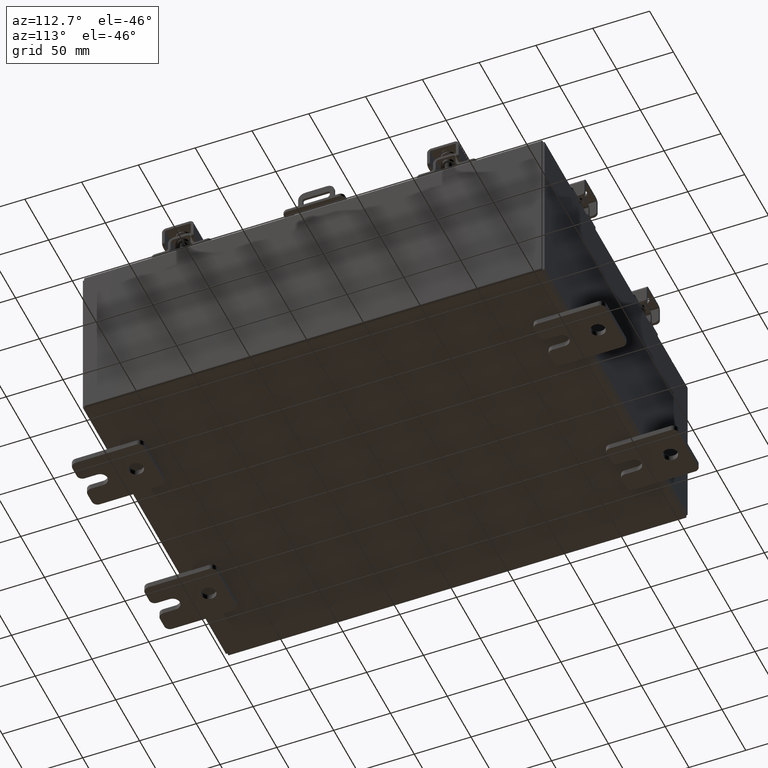
[diagram: clean part render]
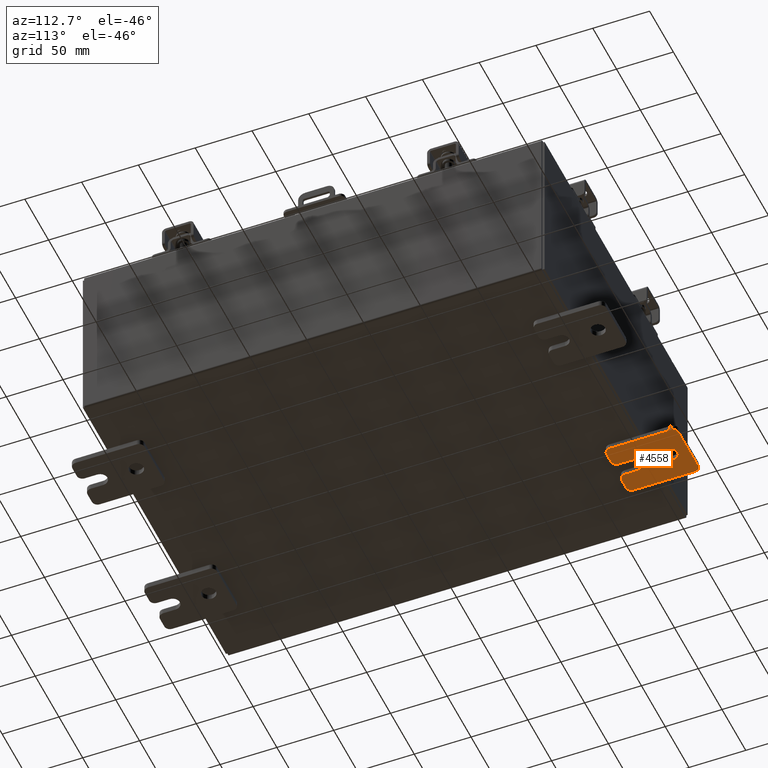
[diagram: same view with one face highlighted and labeled with its STEP entity id]
A machine part, auxiliary view. The second image highlights one B-rep face of the part: STEP entity #4558.
In plain terms, the highlighted planar face has unit normal (0, 0, 1).
Its self-contained STEP definition (entity closure, byte-faithful):
#18 = LINE ( 'NONE', #3901, #20382 ) ;
#193 = DIRECTION ( 'NONE',  ( 0.0000000000000000000, 0.0000000000000000000, -1.000000000000000000 ) ) ;
#208 = DIRECTION ( 'NONE',  ( -1.000000000000000000, -0.0000000000000000000, 0.0000000000000000000 ) ) ;
#232 = CARTESIAN_POINT ( 'NONE',  ( -0.1879999999999997800, 1.059999999999996300, 0.8099999999999938400 ) ) ;
#334 = CARTESIAN_POINT ( 'NONE',  ( -0.1879999999999997800, -1.060000000000001600, 0.8099999999999978300 ) ) ;
#712 = ORIENTED_EDGE ( 'NONE', *, *, #10121, .T. ) ;
#1002 = DIRECTION ( 'NONE',  ( 0.0000000000000000000, -1.639108796198553600E-015, -1.000000000000000000 ) ) ;
#1017 = DIRECTION ( 'NONE',  ( 0.0000000000000000000, 0.0000000000000000000, -1.000000000000000000 ) ) ;
#1085 = DIRECTION ( 'NONE',  ( 1.000000000000000000, -0.0000000000000000000, -5.163192708025532000E-017 ) ) ;
#1157 = CARTESIAN_POINT ( 'NONE',  ( -0.1880000000000010000, 0.6249999999999992200, -7.703811342100550500E-020 ) ) ;
#1329 = CARTESIAN_POINT ( 'NONE',  ( -0.1880000000000001900, -0.6249999999999992200, -0.2499999999999998600 ) ) ;
#1382 = VERTEX_POINT ( 'NONE', #18584 ) ;
#1408 = VECTOR ( 'NONE', #11051, 39.37007874015748100 ) ;
#1456 = ORIENTED_EDGE ( 'NONE', *, *, #18221, .T. ) ;
#1627 = VECTOR ( 'NONE', #15226, 39.37007874015748100 ) ;
#1809 = VECTOR ( 'NONE', #19936, 39.37007874015748100 ) ;
#1850 = VERTEX_POINT ( 'NONE', #14466 ) ;
#2029 = ORIENTED_EDGE ( 'NONE', *, *, #4713, .F. ) ;
#2217 = VERTEX_POINT ( 'NONE', #16664 ) ;
#2574 = FACE_OUTER_BOUND ( 'NONE', #6555, .T. ) ;
#2578 = CARTESIAN_POINT ( 'NONE',  ( -0.1879999999999997800, 1.249999999999997300, 0.8099999999999935000 ) ) ;
#3096 = EDGE_CURVE ( 'NONE', #1382, #3680, #10254, .T. ) ;
#3111 = CIRCLE ( 'NONE', #18331, 0.1900000000000011100 ) ;
#3347 = LINE ( 'NONE', #4462, #19885 ) ;
#3358 = LINE ( 'NONE', #6604, #15610 ) ;
#3666 = DIRECTION ( 'NONE',  ( 0.0000000000000000000, 7.189073667537492800E-016, -1.000000000000000000 ) ) ;
#3680 = VERTEX_POINT ( 'NONE', #7694 ) ;
#3901 = CARTESIAN_POINT ( 'NONE',  ( -0.1879999999999997800, -1.250000000000002200, 0.9999999999999992200 ) ) ;
#4010 = VERTEX_POINT ( 'NONE', #1329 ) ;
#4462 = CARTESIAN_POINT ( 'NONE',  ( -0.1879999999999997800, -1.250000000000002200, 0.9999999999999992200 ) ) ;
#4558 = ADVANCED_FACE ( 'NONE', ( #14370, #2574 ), #14479, .F. ) ;
#4586 = EDGE_CURVE ( 'NONE', #4691, #3680, #5916, .T. ) ;
#4653 = ORIENTED_EDGE ( 'NONE', *, *, #16032, .F. ) ;
#4691 = VERTEX_POINT ( 'NONE', #13407 ) ;
#4713 = EDGE_CURVE ( 'NONE', #7760, #18119, #3347, .T. ) ;
#4818 = CARTESIAN_POINT ( 'NONE',  ( -0.1880000000000001900, -0.6249999999999992200, 6.829619984160658000E-017 ) ) ;
#4831 = CARTESIAN_POINT ( 'NONE',  ( -0.1879999999999997800, -1.060000000000002100, 0.4400000000000016700 ) ) ;
#5848 = ORIENTED_EDGE ( 'NONE', *, *, #6915, .T. ) ;
#5916 = CIRCLE ( 'NONE', #13503, 0.1900000000000011100 ) ;
#5998 = ORIENTED_EDGE ( 'NONE', *, *, #6537, .T. ) ;
#6342 = CARTESIAN_POINT ( 'NONE',  ( -0.1880000000000001900, -0.6249999999999992200, 0.2500000000000005000 ) ) ;
#6472 = DIRECTION ( 'NONE',  ( -6.829619984160660000E-016, -1.000000000000000000, 0.0000000000000000000 ) ) ;
#6483 = DIRECTION ( 'NONE',  ( 0.0000000000000000000, 0.0000000000000000000, -1.000000000000000000 ) ) ;
#6537 = EDGE_CURVE ( 'NONE', #18980, #13861, #17066, .T. ) ;
#6555 = EDGE_LOOP ( 'NONE', ( #15073, #10067, #17636, #5848, #14380, #16737, #18719, #712, #2029, #18919, #7472, #4653, #17449, #1456 ) ) ;
#6604 = CARTESIAN_POINT ( 'NONE',  ( -0.1880000000000001900, -0.6249999999999992200, -0.2499999999999993900 ) ) ;
#6672 = CIRCLE ( 'NONE', #17528, 0.1900000000000011100 ) ;
#6886 = EDGE_CURVE ( 'NONE', #13861, #18980, #13600, .T. ) ;
#6915 = EDGE_CURVE ( 'NONE', #1382, #8817, #19588, .T. ) ;
#6980 = CARTESIAN_POINT ( 'NONE',  ( -0.1879999999999997800, 1.249999999999994200, -1.000000000000010400 ) ) ;
#7472 = ORIENTED_EDGE ( 'NONE', *, *, #9460, .F. ) ;
#7694 = CARTESIAN_POINT ( 'NONE',  ( -0.1879999999999997800, -1.060000000000001200, 0.9999999999999988900 ) ) ;
#7760 = VERTEX_POINT ( 'NONE', #12744 ) ;
#7915 = DIRECTION ( 'NONE',  ( -6.556435184794182400E-016, -1.000000000000000000, -1.639108796198545600E-016 ) ) ;
#7962 = EDGE_CURVE ( 'NONE', #2217, #9124, #3111, .T. ) ;
#7997 = AXIS2_PLACEMENT_3D ( 'NONE', #4831, #15971, #6483 ) ;
#8122 = CARTESIAN_POINT ( 'NONE',  ( -0.1880000000000010000, 0.6249999999999992200, -0.2499999999999999200 ) ) ;
#8336 = DIRECTION ( 'NONE',  ( 0.0000000000000000000, 0.0000000000000000000, -1.000000000000000000 ) ) ;
#8363 = DIRECTION ( 'NONE',  ( 1.000000000000000000, -0.0000000000000000000, -5.163192708025532000E-017 ) ) ;
#8387 = CARTESIAN_POINT ( 'NONE',  ( -0.1880000000000010000, 0.6249999999999992200, -7.703811342100550500E-020 ) ) ;
#8648 = EDGE_CURVE ( 'NONE', #4691, #9454, #18, .T. ) ;
#8817 = VERTEX_POINT ( 'NONE', #2578 ) ;
#8863 = DIRECTION ( 'NONE',  ( 0.0000000000000000000, 0.0000000000000000000, -1.000000000000000000 ) ) ;
#8909 = DIRECTION ( 'NONE',  ( -1.000000000000000000, -0.0000000000000000000, 0.0000000000000000000 ) ) ;
#8935 = CARTESIAN_POINT ( 'NONE',  ( -0.1879999999999997800, 1.059999999999993600, -0.8100000000000089400 ) ) ;
#8937 = AXIS2_PLACEMENT_3D ( 'NONE', #232, #208, #193 ) ;
#8993 = DIRECTION ( 'NONE',  ( -0.0000000000000000000, 0.0000000000000000000, -1.000000000000000000 ) ) ;
#9100 = CARTESIAN_POINT ( 'NONE',  ( -0.1879999999999997800, 1.059999999999993400, -1.000000000000010000 ) ) ;
#9124 = VERTEX_POINT ( 'NONE', #9100 ) ;
#9454 = VERTEX_POINT ( 'NONE', #10372 ) ;
#9460 = EDGE_CURVE ( 'NONE', #4010, #1850, #3358, .T. ) ;
#9560 = EDGE_CURVE ( 'NONE', #2217, #8817, #14629, .T. ) ;
#9599 = AXIS2_PLACEMENT_3D ( 'NONE', #1157, #1085, #1017 ) ;
#10067 = ORIENTED_EDGE ( 'NONE', *, *, #4586, .T. ) ;
#10121 = EDGE_CURVE ( 'NONE', #12831, #18119, #6672, .T. ) ;
#10152 = CIRCLE ( 'NONE', #17889, 0.1900000000000011100 ) ;
#10254 = LINE ( 'NONE', #15655, #1627 ) ;
#10312 = DIRECTION ( 'NONE',  ( 0.0000000000000000000, 0.0000000000000000000, -1.000000000000000000 ) ) ;
#10319 = EDGE_CURVE ( 'NONE', #12831, #9124, #20609, .T. ) ;
#10336 = DIRECTION ( 'NONE',  ( -1.000000000000000000, -0.0000000000000000000, 0.0000000000000000000 ) ) ;
#10372 = CARTESIAN_POINT ( 'NONE',  ( -0.1879999999999997800, -1.250000000000003100, 0.4400000000000020000 ) ) ;
#10412 = EDGE_CURVE ( 'NONE', #7760, #1850, #10152, .T. ) ;
#10452 = DIRECTION ( 'NONE',  ( -1.000000000000000000, -0.0000000000000000000, 0.0000000000000000000 ) ) ;
#10496 = CARTESIAN_POINT ( 'NONE',  ( -0.1879999999999997800, -1.060000000000003400, -0.4400000000000005000 ) ) ;
#10540 = LINE ( 'NONE', #12651, #1408 ) ;
#11051 = DIRECTION ( 'NONE',  ( 6.556435184794182400E-016, 1.000000000000000000, 0.0000000000000000000 ) ) ;
#11082 = VERTEX_POINT ( 'NONE', #6342 ) ;
#11462 = CARTESIAN_POINT ( 'NONE',  ( -0.1880000000000004700, -1.060000000000002100, 0.2500000000000005000 ) ) ;
#11730 = CARTESIAN_POINT ( 'NONE',  ( -0.1880000000000010000, 0.6249999999999992200, 0.2499999999999999200 ) ) ;
#11995 = DIRECTION ( 'NONE',  ( 0.0000000000000000000, 1.000000000000000000, -1.639108796198558100E-015 ) ) ;
#12128 = CARTESIAN_POINT ( 'NONE',  ( -0.1879999999999997800, -1.250000000000005600, -1.000000000000006200 ) ) ;
#12651 = CARTESIAN_POINT ( 'NONE',  ( -0.1880000000000005800, -1.250000000000003800, 0.2500000000000005000 ) ) ;
#12744 = CARTESIAN_POINT ( 'NONE',  ( -0.1879999999999997800, -1.250000000000004700, -0.4400000000000002200 ) ) ;
#12831 = VERTEX_POINT ( 'NONE', #12857 ) ;
#12857 = CARTESIAN_POINT ( 'NONE',  ( -0.1879999999999997800, -1.060000000000004500, -1.000000000000006400 ) ) ;
#13109 = VERTEX_POINT ( 'NONE', #11462 ) ;
#13374 = AXIS2_PLACEMENT_3D ( 'NONE', #18104, #19728, #8993 ) ;
#13407 = CARTESIAN_POINT ( 'NONE',  ( -0.1879999999999997800, -1.250000000000002400, 0.8099999999999980500 ) ) ;
#13503 = AXIS2_PLACEMENT_3D ( 'NONE', #334, #10336, #3666 ) ;
#13584 = AXIS2_PLACEMENT_3D ( 'NONE', #8387, #8363, #8336 ) ;
#13600 = CIRCLE ( 'NONE', #9599, 0.2499999999999999200 ) ;
#13754 = CIRCLE ( 'NONE', #20505, 0.2499999999999999200 ) ;
#13861 = VERTEX_POINT ( 'NONE', #11730 ) ;
#14370 = FACE_BOUND ( 'NONE', #16076, .T. ) ;
#14380 = ORIENTED_EDGE ( 'NONE', *, *, #9560, .F. ) ;
#14466 = CARTESIAN_POINT ( 'NONE',  ( -0.1880000000000004700, -1.060000000000003400, -0.2499999999999994400 ) ) ;
#14479 = PLANE ( 'NONE',  #13374 ) ;
#14481 = DIRECTION ( 'NONE',  ( 0.0000000000000000000, -1.639108796198553600E-015, -1.000000000000000000 ) ) ;
#14629 = LINE ( 'NONE', #6980, #1809 ) ;
#14794 = DIRECTION ( 'NONE',  ( 0.0000000000000000000, 0.0000000000000000000, -1.000000000000000000 ) ) ;
#14812 = DIRECTION ( 'NONE',  ( -1.000000000000000000, -0.0000000000000000000, 0.0000000000000000000 ) ) ;
#14816 = ORIENTED_EDGE ( 'NONE', *, *, #6886, .T. ) ;
#14830 = CARTESIAN_POINT ( 'NONE',  ( -0.1879999999999997800, -1.060000000000004100, -0.8100000000000050500 ) ) ;
#15073 = ORIENTED_EDGE ( 'NONE', *, *, #8648, .F. ) ;
#15226 = DIRECTION ( 'NONE',  ( 0.0000000000000000000, -1.000000000000000000, 1.639108796198558100E-015 ) ) ;
#15610 = VECTOR ( 'NONE', #7915, 39.37007874015748100 ) ;
#15655 = CARTESIAN_POINT ( 'NONE',  ( -0.1879999999999997800, 1.249999999999997600, 0.9999999999999951200 ) ) ;
#15957 = DIRECTION ( 'NONE',  ( -1.000000000000000000, 6.523827964459549700E-016, 5.163192708025532000E-017 ) ) ;
#15971 = DIRECTION ( 'NONE',  ( -1.000000000000000000, -0.0000000000000000000, 0.0000000000000000000 ) ) ;
#16032 = EDGE_CURVE ( 'NONE', #11082, #4010, #13754, .T. ) ;
#16076 = EDGE_LOOP ( 'NONE', ( #5998, #14816 ) ) ;
#16421 = CIRCLE ( 'NONE', #7997, 0.1900000000000011400 ) ;
#16664 = CARTESIAN_POINT ( 'NONE',  ( -0.1879999999999997800, 1.249999999999994700, -0.8100000000000092700 ) ) ;
#16737 = ORIENTED_EDGE ( 'NONE', *, *, #7962, .T. ) ;
#17066 = CIRCLE ( 'NONE', #13584, 0.2499999999999999200 ) ;
#17166 = CARTESIAN_POINT ( 'NONE',  ( -0.1879999999999997800, -1.250000000000005300, -0.8100000000000047200 ) ) ;
#17449 = ORIENTED_EDGE ( 'NONE', *, *, #20104, .F. ) ;
#17528 = AXIS2_PLACEMENT_3D ( 'NONE', #14830, #14812, #14794 ) ;
#17636 = ORIENTED_EDGE ( 'NONE', *, *, #3096, .F. ) ;
#17889 = AXIS2_PLACEMENT_3D ( 'NONE', #10496, #10452, #10312 ) ;
#18104 = CARTESIAN_POINT ( 'NONE',  ( -0.1879999999999997800, 0.0000000000000000000, 0.0000000000000000000 ) ) ;
#18119 = VERTEX_POINT ( 'NONE', #17166 ) ;
#18221 = EDGE_CURVE ( 'NONE', #13109, #9454, #16421, .T. ) ;
#18331 = AXIS2_PLACEMENT_3D ( 'NONE', #8935, #8909, #8863 ) ;
#18584 = CARTESIAN_POINT ( 'NONE',  ( -0.1879999999999997800, 1.059999999999996500, 0.9999999999999953400 ) ) ;
#18719 = ORIENTED_EDGE ( 'NONE', *, *, #10319, .F. ) ;
#18919 = ORIENTED_EDGE ( 'NONE', *, *, #10412, .T. ) ;
#18980 = VERTEX_POINT ( 'NONE', #8122 ) ;
#19588 = CIRCLE ( 'NONE', #8937, 0.1900000000000011100 ) ;
#19728 = DIRECTION ( 'NONE',  ( 1.000000000000000000, 0.0000000000000000000, -0.0000000000000000000 ) ) ;
#19885 = VECTOR ( 'NONE', #1002, 39.37007874015748100 ) ;
#19936 = DIRECTION ( 'NONE',  ( 0.0000000000000000000, 1.639108796198553600E-015, 1.000000000000000000 ) ) ;
#20104 = EDGE_CURVE ( 'NONE', #13109, #11082, #10540, .T. ) ;
#20106 = VECTOR ( 'NONE', #11995, 39.37007874015748100 ) ;
#20382 = VECTOR ( 'NONE', #14481, 39.37007874015748100 ) ;
#20505 = AXIS2_PLACEMENT_3D ( 'NONE', #4818, #15957, #6472 ) ;
#20609 = LINE ( 'NONE', #12128, #20106 ) ;